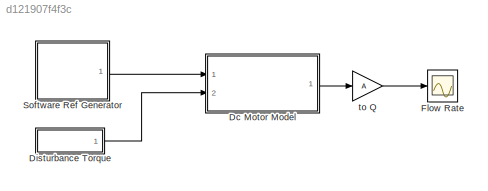
MODEL slx_d121907f4f3c
KIND model
CONFIG AbsTol = auto
CONFIG EnableMultiTasking = off
CONFIG FixedStep = auto
CONFIG MaxStep = auto
CONFIG MinStep = auto
CONFIG RelTol = 1e-3
CONFIG SampleTimeConstraint = Unconstrained
CONFIG Solver = VariableStepAuto
CONFIG SolverName = VariableStepAuto
CONFIG StartTime = 0.0
CONFIG StopTime = 10.0
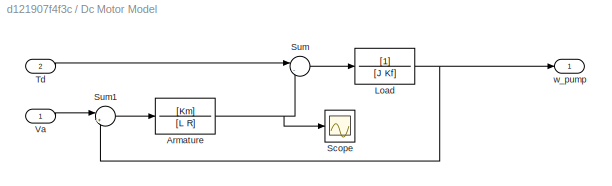
BLOCK [SubSystem] Dc Motor Model
  Ports = [2, 1]
  RequestExecContextInheritance = off
  Variant = off
BLOCK [TransferFcn] Dc Motor Model/Armature
  Denominator = [L R]
  Numerator = [Km]
BLOCK [TransferFcn] Dc Motor Model/Load
  Denominator = [J Kf]
BLOCK [Scope] Dc Motor Model/Scope
  NumInputPorts = 1
  Ports = [1]
  ScopeSpecificationString = Simulink.scopes.TimeScopeBlockCfg('CurrentConfiguration', extmgr.ConfigurationSet(extmgr.Configuration('Core','General UI',true),extmgr.Configuration('Core','Source UI',true),extmgr.Configuration('Sources','WiredSimulink',true,'DataLoggingVariableName','ScopeData3'),extmgr.Configuration('Visuals','Time Domain',true,'SerializedDisplays',{struct('MinYLimReal','-0.56374','MaxYLimReal','5.07368','YLab...<+1367ch>
BLOCK [Sum] Dc Motor Model/Sum
  IconShape = round
  InputSameDT = off
  Inputs = |-+
  OutDataTypeStr = Inherit: Inherit via internal rule
  Ports = [2, 1]
  SaturateOnIntegerOverflow = off
BLOCK [Sum] Dc Motor Model/Sum1
  IconShape = round
  InputSameDT = off
  Inputs = |+-
  OutDataTypeStr = Inherit: Inherit via internal rule
  Ports = [2, 1]
  SaturateOnIntegerOverflow = off
BLOCK [Inport] Dc Motor Model/Td
  IconDisplay = Port number
  Port = 2
BLOCK [Inport] Dc Motor Model/Va
  IconDisplay = Port number
BLOCK [Outport] Dc Motor Model/w_pump
  IconDisplay = Port number
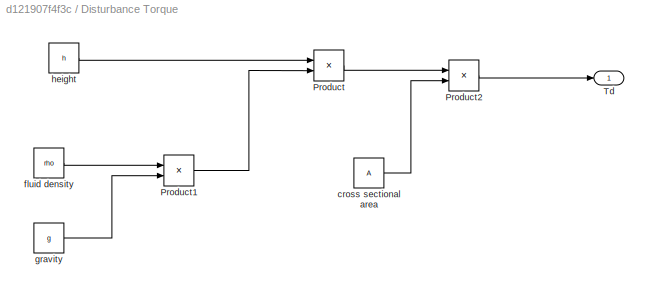
BLOCK [SubSystem] Disturbance Torque
  Ports = [0, 1]
  RequestExecContextInheritance = off
  Variant = off
BLOCK [Product] Disturbance Torque/Product
  InputSameDT = off
  OutDataTypeStr = Inherit: Inherit via internal rule
  Ports = [2, 1]
  RndMeth = Floor
  SaturateOnIntegerOverflow = off
BLOCK [Product] Disturbance Torque/Product1
  InputSameDT = off
  OutDataTypeStr = Inherit: Inherit via internal rule
  Ports = [2, 1]
  RndMeth = Floor
  SaturateOnIntegerOverflow = off
BLOCK [Product] Disturbance Torque/Product2
  InputSameDT = off
  OutDataTypeStr = Inherit: Inherit via internal rule
  Ports = [2, 1]
  RndMeth = Floor
  SaturateOnIntegerOverflow = off
BLOCK [Outport] Disturbance Torque/Td
  IconDisplay = Port number
BLOCK [Constant] Disturbance Torque/cross sectional area
  Value = A
BLOCK [Constant] Disturbance Torque/fluid density
  Value = rho
BLOCK [Constant] Disturbance Torque/gravity
  Value = g
BLOCK [Constant] Disturbance Torque/height
  Value = h
BLOCK [Scope] Flow Rate
  NumInputPorts = 1
  Ports = [1]
  ScopeSpecificationString = C++SS(StrPVP('SaveName','ScopeData1'),StrPVP('LimitDataPoints','on'),StrPVP('DataFormat','Array'),StrPVP('Decimation','1'),StrPVP('BlockParamSampleInput','off'))
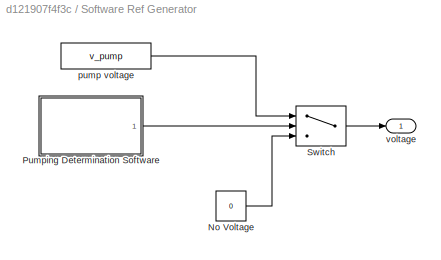
BLOCK [SubSystem] Software Ref Generator
  Ports = [0, 1]
  RequestExecContextInheritance = off
  Variant = off
BLOCK [Constant] Software Ref Generator/No Voltage
  Value = 0
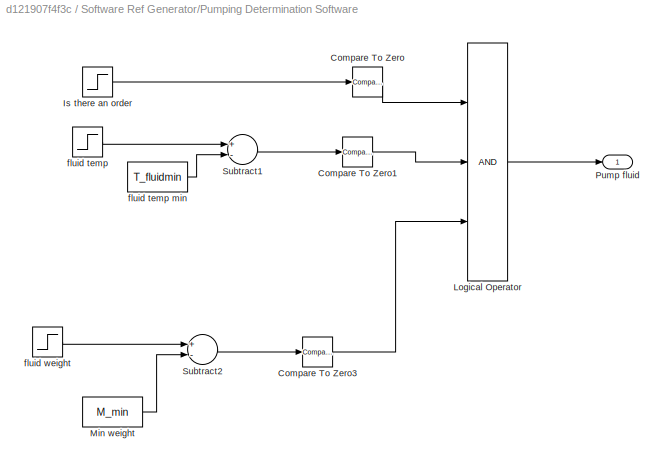
BLOCK [SubSystem] Software Ref Generator/Pumping Determination Software
  Ports = [0, 1]
  RequestExecContextInheritance = off
  Variant = off
BLOCK [Reference] Software Ref Generator/Pumping Determination Software/Compare To Zero  REF=simulink/Logic and Bit
Operations/Compare
To Zero
  Ports = [1, 1]
  SourceBlock = simulink/Logic and Bit\nOperations/Compare\nTo Zero
  SourceType = Compare To Zero
BLOCK [Reference] Software Ref Generator/Pumping Determination Software/Compare To Zero1  REF=simulink/Logic and Bit
Operations/Compare
To Zero
  Ports = [1, 1]
  SourceBlock = simulink/Logic and Bit\nOperations/Compare\nTo Zero
  SourceType = Compare To Zero
BLOCK [Reference] Software Ref Generator/Pumping Determination Software/Compare To Zero3  REF=simulink/Logic and Bit
Operations/Compare
To Zero
  Ports = [1, 1]
  SourceBlock = simulink/Logic and Bit\nOperations/Compare\nTo Zero
  SourceType = Compare To Zero
BLOCK [Step] Software Ref Generator/Pumping Determination Software/Is there an order 
  SampleTime = 0
  Time = 0
BLOCK [Logic] Software Ref Generator/Pumping Determination Software/Logical Operator
  AllPortsSameDT = off
  Inputs = 3
  OutDataTypeStr = boolean
  Ports = [3, 1]
BLOCK [Constant] Software Ref Generator/Pumping Determination Software/Min weight
  Value = M_min
BLOCK [Outport] Software Ref Generator/Pumping Determination Software/Pump fluid
  IconDisplay = Port number
BLOCK [Sum] Software Ref Generator/Pumping Determination Software/Subtract1
  InputSameDT = off
  Inputs = +-
  OutDataTypeStr = Inherit: Inherit via internal rule
  Ports = [2, 1]
  SaturateOnIntegerOverflow = off
BLOCK [Sum] Software Ref Generator/Pumping Determination Software/Subtract2
  InputSameDT = off
  Inputs = +-
  OutDataTypeStr = Inherit: Inherit via internal rule
  Ports = [2, 1]
  SaturateOnIntegerOverflow = off
BLOCK [Step] Software Ref Generator/Pumping Determination Software/fluid temp
  After = T_fluid
  SampleTime = 0
  Time = 0
BLOCK [Constant] Software Ref Generator/Pumping Determination Software/fluid temp min
  Value = T_fluidmin
BLOCK [Step] Software Ref Generator/Pumping Determination Software/fluid weight
  After = M_amount
  SampleTime = 0
  Time = 0
BLOCK [Switch] Software Ref Generator/Switch
  Criteria = u2 > Threshold
  InputSameDT = off
  SaturateOnIntegerOverflow = off
BLOCK [Constant] Software Ref Generator/pump voltage
  Value = v_pump
BLOCK [Outport] Software Ref Generator/voltage
  IconDisplay = Port number
BLOCK [Gain] to Q
  Gain = A
  OutDataTypeStr = Inherit: Inherit via internal rule
  ParamDataTypeStr = Inherit: Inherit via internal rule
  SaturateOnIntegerOverflow = off
NET Dc Motor Model/Armature:1 -> Dc Motor Model/Scope:1, Dc Motor Model/Sum:2
NET Dc Motor Model/Load:1 -> Dc Motor Model/Sum1:2, Dc Motor Model/w_pump:1
LINE Dc Motor Model/Sum1:1 -> Dc Motor Model/Armature:1
LINE Dc Motor Model/Sum:1 -> Dc Motor Model/Load:1
LINE Dc Motor Model/Td:1 -> Dc Motor Model/Sum:1
LINE Dc Motor Model/Va:1 -> Dc Motor Model/Sum1:1
LINE Dc Motor Model:1 -> to Q:1
LINE Disturbance Torque/Product1:1 -> Disturbance Torque/Product:2
LINE Disturbance Torque/Product2:1 -> Disturbance Torque/Td:1
LINE Disturbance Torque/Product:1 -> Disturbance Torque/Product2:1
LINE Disturbance Torque/cross sectional area:1 -> Disturbance Torque/Product2:2
LINE Disturbance Torque/fluid density:1 -> Disturbance Torque/Product1:1
LINE Disturbance Torque/gravity:1 -> Disturbance Torque/Product1:2
LINE Disturbance Torque/height:1 -> Disturbance Torque/Product:1
LINE Disturbance Torque:1 -> Dc Motor Model:2
LINE Software Ref Generator/No Voltage:1 -> Software Ref Generator/Switch:3
LINE Software Ref Generator/Pumping Determination Software/Compare To Zero1:1 -> Software Ref Generator/Pumping Determination Software/Logical Operator:2
LINE Software Ref Generator/Pumping Determination Software/Compare To Zero3:1 -> Software Ref Generator/Pumping Determination Software/Logical Operator:3
LINE Software Ref Generator/Pumping Determination Software/Compare To Zero:1 -> Software Ref Generator/Pumping Determination Software/Logical Operator:1
LINE Software Ref Generator/Pumping Determination Software/Is there an order :1 -> Software Ref Generator/Pumping Determination Software/Compare To Zero:1
LINE Software Ref Generator/Pumping Determination Software/Logical Operator:1 -> Software Ref Generator/Pumping Determination Software/Pump fluid:1
LINE Software Ref Generator/Pumping Determination Software/Min weight:1 -> Software Ref Generator/Pumping Determination Software/Subtract2:2
LINE Software Ref Generator/Pumping Determination Software/Subtract1:1 -> Software Ref Generator/Pumping Determination Software/Compare To Zero1:1
LINE Software Ref Generator/Pumping Determination Software/Subtract2:1 -> Software Ref Generator/Pumping Determination Software/Compare To Zero3:1
LINE Software Ref Generator/Pumping Determination Software/fluid temp min:1 -> Software Ref Generator/Pumping Determination Software/Subtract1:2
LINE Software Ref Generator/Pumping Determination Software/fluid temp:1 -> Software Ref Generator/Pumping Determination Software/Subtract1:1
LINE Software Ref Generator/Pumping Determination Software/fluid weight:1 -> Software Ref Generator/Pumping Determination Software/Subtract2:1
LINE Software Ref Generator/Pumping Determination Software:1 -> Software Ref Generator/Switch:2
LINE Software Ref Generator/Switch:1 -> Software Ref Generator/voltage:1
LINE Software Ref Generator/pump voltage:1 -> Software Ref Generator/Switch:1
LINE Software Ref Generator:1 -> Dc Motor Model:1
LINE to Q:1 -> Flow Rate:1
note: NET lines group one-source signal fan-out (src -> all destinations, sorted); 1:1 wires keep LINE
